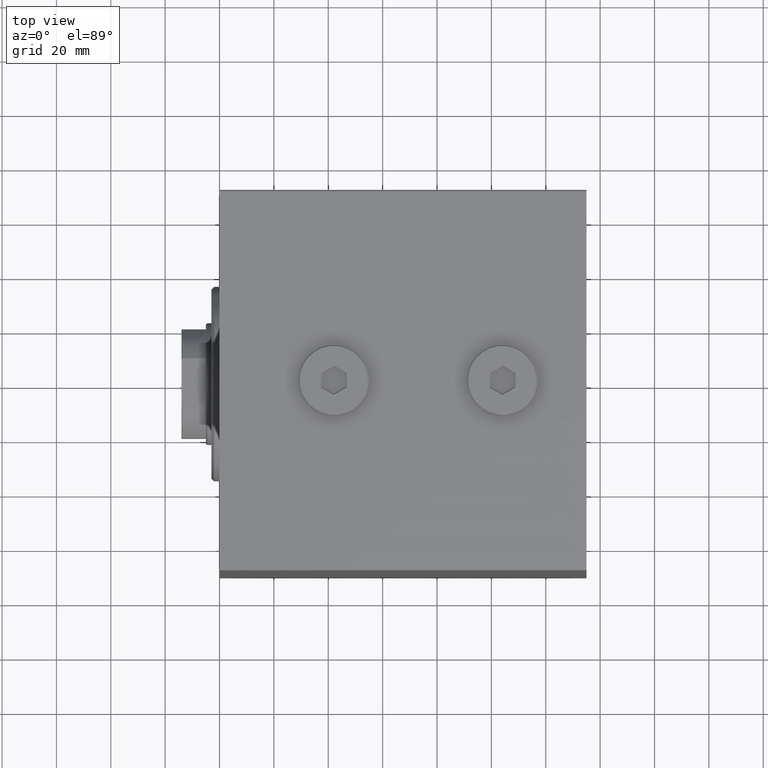
[diagram: clean part render]
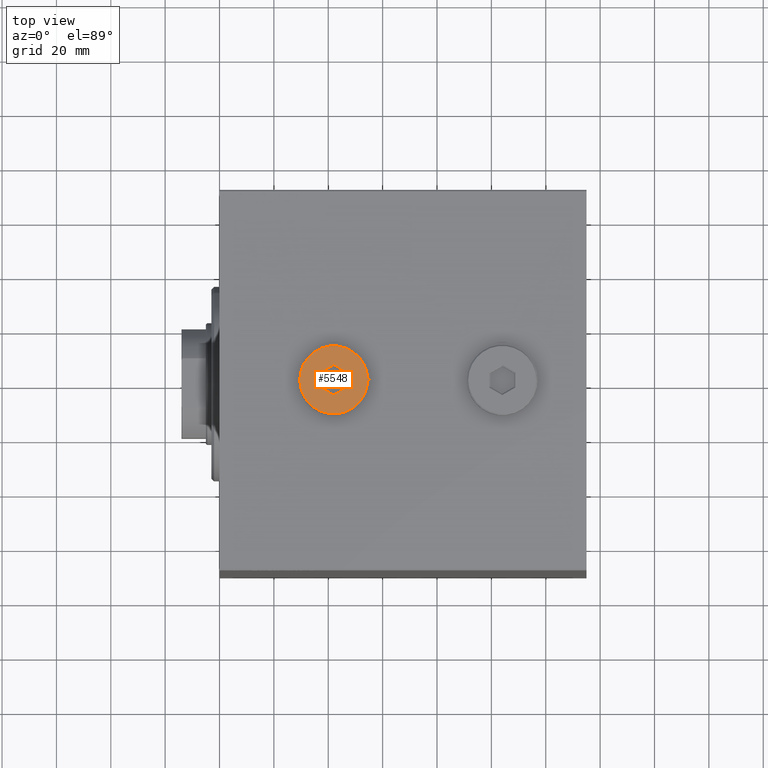
[diagram: same view with one face highlighted and labeled with its STEP entity id]
A machine part, top view. The second image highlights one B-rep face of the part: STEP entity #5548.
In plain terms, the highlighted planar face has unit normal (0, 0, 1).
Its self-contained STEP definition (entity closure, byte-faithful):
#1807 = EDGE_CURVE ( 'NONE', #8524, #19029, #9012, .T. ) ;
#2100 = AXIS2_PLACEMENT_3D ( 'NONE', #8135, #36646, #12447 ) ;
#2259 = LINE ( 'NONE', #8215, #38073 ) ;
#2340 = VERTEX_POINT ( 'NONE', #22603 ) ;
#2582 = PLANE ( 'NONE',  #24718 ) ;
#3396 = VECTOR ( 'NONE', #6112, 1000.000000000000000 ) ;
#5548 = ADVANCED_FACE ( 'NONE', ( #26107, #37271 ), #2582, .T. ) ;
#5678 = CARTESIAN_POINT ( 'NONE',  ( 1.144664513637780713E-15, 5.581052602166389320, 5.000000000000000000 ) ) ;
#6112 = DIRECTION ( 'NONE',  ( 0.000000000000000000, 1.000000000000000000, 0.000000000000000000 ) ) ;
#6608 = DIRECTION ( 'NONE',  ( -0.8660254037844385966, 0.5000000000000001110, 0.000000000000000000 ) ) ;
#6880 = ORIENTED_EDGE ( 'NONE', *, *, #1807, .T. ) ;
#6975 = CARTESIAN_POINT ( 'NONE',  ( -1.883403334290581714E-15, -5.581052602166390209, 5.000000000000000000 ) ) ;
#7713 = ORIENTED_EDGE ( 'NONE', *, *, #23224, .T. ) ;
#7933 = CIRCLE ( 'NONE', #2100, 12.50000000000001066 ) ;
#8135 = CARTESIAN_POINT ( 'NONE',  ( 0.000000000000000000, 0.000000000000000000, 5.000000000000000000 ) ) ;
#8215 = CARTESIAN_POINT ( 'NONE',  ( 4.833333333333341919, -2.501851166488378908, 5.000000000000000000 ) ) ;
#8524 = VERTEX_POINT ( 'NONE', #30824 ) ;
#9012 = LINE ( 'NONE', #43487, #35659 ) ;
#10364 = CARTESIAN_POINT ( 'NONE',  ( -12.50000000000001066, 0.000000000000000000, 5.000000000000000000 ) ) ;
#11297 = DIRECTION ( 'NONE',  ( 1.000000000000000000, 0.000000000000000000, 0.000000000000000000 ) ) ;
#12447 = DIRECTION ( 'NONE',  ( 1.000000000000000000, 0.000000000000000000, 0.000000000000000000 ) ) ;
#13390 = CARTESIAN_POINT ( 'NONE',  ( -0.2500000000000021094, 5.436715034868981000, 5.000000000000000000 ) ) ;
#13865 = CARTESIAN_POINT ( 'NONE',  ( -4.833333333333340143, 2.501851166488380240, 5.000000000000000000 ) ) ;
#14063 = DIRECTION ( 'NONE',  ( 0.8660254037844388186, 0.4999999999999997780, 0.000000000000000000 ) ) ;
#14247 = EDGE_LOOP ( 'NONE', ( #30433, #14360 ) ) ;
#14360 = ORIENTED_EDGE ( 'NONE', *, *, #35897, .T. ) ;
#14956 = DIRECTION ( 'NONE',  ( -0.8660254037844387076, -0.4999999999999998335, 0.000000000000000000 ) ) ;
#15605 = DIRECTION ( 'NONE',  ( 1.000000000000000000, 0.000000000000000000, -0.000000000000000000 ) ) ;
#16728 = ORIENTED_EDGE ( 'NONE', *, *, #18794, .T. ) ;
#16857 = VERTEX_POINT ( 'NONE', #41110 ) ;
#18193 = VECTOR ( 'NONE', #14063, 1000.000000000000114 ) ;
#18538 = VERTEX_POINT ( 'NONE', #10364 ) ;
#18794 = EDGE_CURVE ( 'NONE', #19029, #16857, #34886, .T. ) ;
#19029 = VERTEX_POINT ( 'NONE', #6975 ) ;
#22127 = EDGE_CURVE ( 'NONE', #2340, #8524, #2259, .T. ) ;
#22389 = CIRCLE ( 'NONE', #40596, 12.50000000000001066 ) ;
#22603 = CARTESIAN_POINT ( 'NONE',  ( 4.833333333333341919, 2.790526301083194216, 5.000000000000000000 ) ) ;
#23120 = DIRECTION ( 'NONE',  ( 0.000000000000000000, 0.000000000000000000, 1.000000000000000000 ) ) ;
#23224 = EDGE_CURVE ( 'NONE', #24536, #2340, #29824, .T. ) ;
#23578 = CARTESIAN_POINT ( 'NONE',  ( 0.000000000000000000, 0.000000000000000000, 5.000000000000000000 ) ) ;
#24536 = VERTEX_POINT ( 'NONE', #5678 ) ;
#24718 = AXIS2_PLACEMENT_3D ( 'NONE', #23578, #23120, #15605 ) ;
#25784 = DIRECTION ( 'NONE',  ( 0.000000000000000000, -1.000000000000000000, 0.000000000000000000 ) ) ;
#25826 = ORIENTED_EDGE ( 'NONE', *, *, #34645, .T. ) ;
#26107 = FACE_BOUND ( 'NONE', #41244, .T. ) ;
#27839 = CARTESIAN_POINT ( 'NONE',  ( -4.583333333333337478, -2.934863868380603424, 5.000000000000000000 ) ) ;
#29824 = LINE ( 'NONE', #33019, #39537 ) ;
#30433 = ORIENTED_EDGE ( 'NONE', *, *, #39558, .T. ) ;
#30824 = CARTESIAN_POINT ( 'NONE',  ( 4.833333333333341919, -2.790526301083194216, 5.000000000000000000 ) ) ;
#31209 = LINE ( 'NONE', #13865, #3396 ) ;
#31522 = VECTOR ( 'NONE', #6608, 1000.000000000000114 ) ;
#31570 = CARTESIAN_POINT ( 'NONE',  ( 12.50000000000001066, 1.561424668912876097E-15, 5.000000000000000000 ) ) ;
#33019 = CARTESIAN_POINT ( 'NONE',  ( 4.583333333333339255, 2.934863868380602092, 5.000000000000000000 ) ) ;
#34645 = EDGE_CURVE ( 'NONE', #16857, #40170, #31209, .T. ) ;
#34821 = LINE ( 'NONE', #13390, #18193 ) ;
#34886 = LINE ( 'NONE', #27839, #31522 ) ;
#35510 = CARTESIAN_POINT ( 'NONE',  ( -4.833333333333340143, 2.790526301083195104, 5.000000000000000000 ) ) ;
#35659 = VECTOR ( 'NONE', #14956, 1000.000000000000000 ) ;
#35698 = ORIENTED_EDGE ( 'NONE', *, *, #22127, .T. ) ;
#35897 = EDGE_CURVE ( 'NONE', #41832, #18538, #22389, .T. ) ;
#36015 = ORIENTED_EDGE ( 'NONE', *, *, #41611, .T. ) ;
#36646 = DIRECTION ( 'NONE',  ( 0.000000000000000000, 0.000000000000000000, 1.000000000000000000 ) ) ;
#37271 = FACE_OUTER_BOUND ( 'NONE', #14247, .T. ) ;
#38073 = VECTOR ( 'NONE', #25784, 1000.000000000000000 ) ;
#39368 = CARTESIAN_POINT ( 'NONE',  ( 0.000000000000000000, 0.000000000000000000, 5.000000000000000000 ) ) ;
#39537 = VECTOR ( 'NONE', #39654, 1000.000000000000000 ) ;
#39558 = EDGE_CURVE ( 'NONE', #18538, #41832, #7933, .T. ) ;
#39654 = DIRECTION ( 'NONE',  ( 0.8660254037844387076, -0.4999999999999998890, 0.000000000000000000 ) ) ;
#40170 = VERTEX_POINT ( 'NONE', #35510 ) ;
#40596 = AXIS2_PLACEMENT_3D ( 'NONE', #39368, #43021, #11297 ) ;
#41110 = CARTESIAN_POINT ( 'NONE',  ( -4.833333333333340143, -2.790526301083195104, 5.000000000000000000 ) ) ;
#41244 = EDGE_LOOP ( 'NONE', ( #25826, #36015, #7713, #35698, #6880, #16728 ) ) ;
#41611 = EDGE_CURVE ( 'NONE', #40170, #24536, #34821, .T. ) ;
#41832 = VERTEX_POINT ( 'NONE', #31570 ) ;
#43021 = DIRECTION ( 'NONE',  ( 0.000000000000000000, 0.000000000000000000, 1.000000000000000000 ) ) ;
#43487 = CARTESIAN_POINT ( 'NONE',  ( 0.2500000000000015543, -5.436715034868981888, 5.000000000000000000 ) ) ;